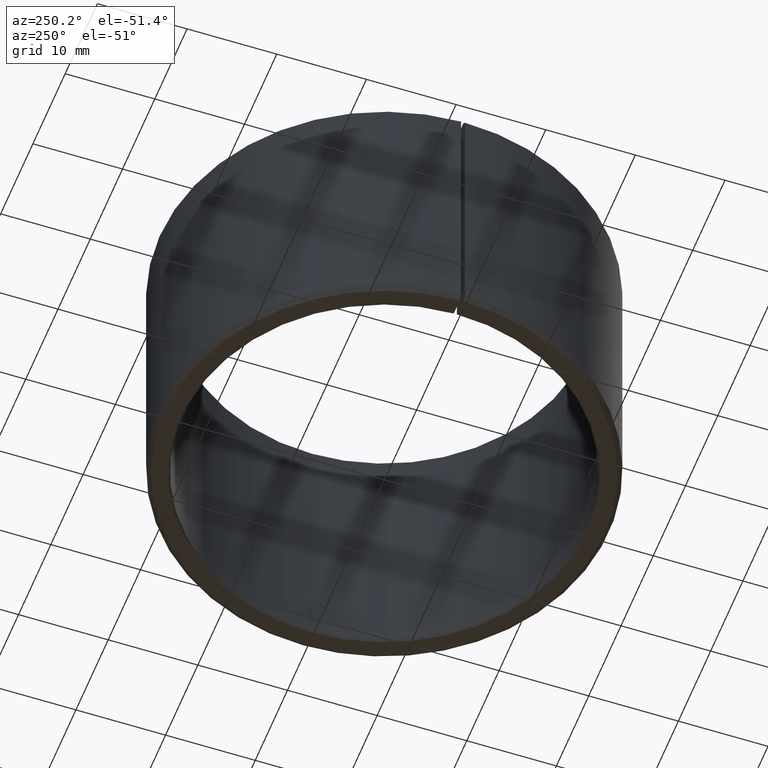
[diagram: clean part render]
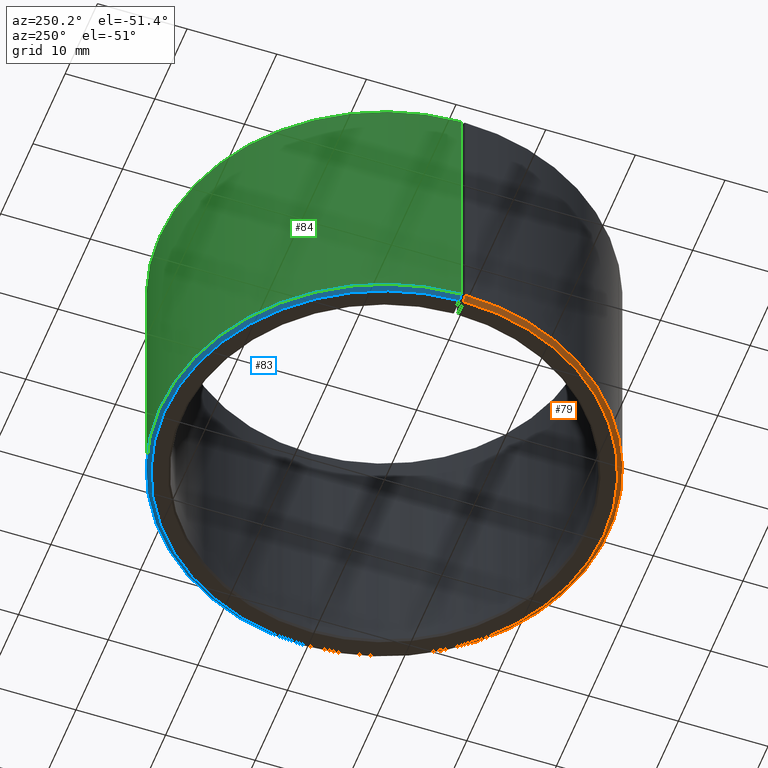
[diagram: same view with three faces highlighted in distinct colors, each labeled with its STEP entity id]
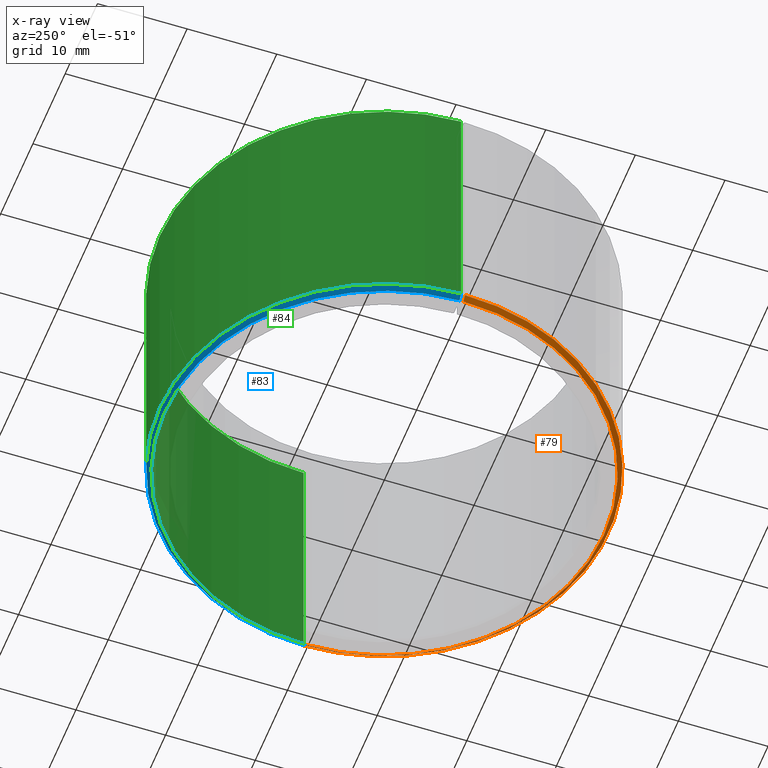
[diagram: x-ray of the same camera — body ghosted, the three highlighted faces saturated]
A machine part, auxiliary view with three faces highlighted in distinct colors.
The next image is the same camera in x-ray (body ghosted, the three faces saturated) — at least one of them is partly hidden behind the body in this view.
Their STEP definitions:

[orange] entity #79 — the highlighted conical surface has half-angle 45 deg.
#79=ADVANCED_FACE('',(#100),#101,.T.);
#100=FACE_OUTER_BOUND('',#132,.T.);
#101=CONICAL_SURFACE('',#133,24.75,0.785398163397451);
#132=EDGE_LOOP('',(#184,#185,#186,#187));
#133=AXIS2_PLACEMENT_3D('',#188,#189,#190);
#184=ORIENTED_EDGE('',*,*,#294,.F.);
#185=ORIENTED_EDGE('',*,*,#293,.F.);
#186=ORIENTED_EDGE('',*,*,#295,.F.);
#187=ORIENTED_EDGE('',*,*,#296,.T.);
#188=CARTESIAN_POINT('',(1.60070376892939E-015,-2.0063413613566E-015,0.250000000000001));
#189=DIRECTION('',(5.48707263966372E-016,-6.09939603923743E-016,1.0));
#190=DIRECTION('',(-1.0,-3.21624529935327E-016,5.48707263966372E-016));
#293=EDGE_CURVE('',#341,#339,#343,.T.);
#294=EDGE_CURVE('',#339,#344,#345,.T.);
#295=EDGE_CURVE('',#346,#341,#347,.T.);
#296=EDGE_CURVE('',#346,#344,#348,.T.);
#339=VERTEX_POINT('',#407);
#341=VERTEX_POINT('',#410);
#343=CIRCLE('',#413,25.0);
#344=VERTEX_POINT('',#414);
#345=LINE('',#415,#416);
#346=VERTEX_POINT('',#417);
#347=LINE('',#418,#419);
#348=CIRCLE('',#420,24.5);
#407=CARTESIAN_POINT('',(25.0,2.82016998817726E-015,0.499999999999987));
#410=CARTESIAN_POINT('',(-25.0,-9.49449387541526E-015,0.500000000000016));
#413=AXIS2_PLACEMENT_3D('',#487,#488,#489);
#414=CARTESIAN_POINT('',(24.5,3.02555986512884E-015,-1.1209004130118E-014));
#415=CARTESIAN_POINT('',(24.75,2.92286492665305E-015,0.249999999999988));
#416=VECTOR('',#490,1.0);
#417=CARTESIAN_POINT('',(-24.5,-9.5838233207983E-015,1.5954510228456E-014));
#418=CARTESIAN_POINT('',(-24.5,-9.5838233207983E-015,1.5954510228456E-014));
#419=VECTOR('',#491,9.99999999999999);
#420=AXIS2_PLACEMENT_3D('',#492,#493,#494);
#487=CARTESIAN_POINT('',(1.73788058492098E-015,-2.1435181773482E-015,0.5));
#488=DIRECTION('',(5.48707263966372E-016,-6.09939603923743E-016,1.0));
#489=DIRECTION('',(-1.0,-3.21624529935327E-016,5.48707263966372E-016));
#490=DIRECTION('',(-0.70710678118655,2.90465149559058E-016,-0.707106781186545));
#491=DIRECTION('',(-0.707106781186549,-6.15417513350146E-016,0.707106781186546));
#492=CARTESIAN_POINT('',(1.46352695293779E-015,-1.86916454536501E-015,2.24013171815854E-015));
#493=DIRECTION('',(5.48707263966372E-016,-6.09939603923743E-016,1.0));
#494=DIRECTION('',(-1.0,-3.21624529935327E-016,5.48707263966372E-016));

[blue] entity #83 — the highlighted conical surface has half-angle 45 deg.
#83=ADVANCED_FACE('',(#108),#109,.T.);
#108=FACE_OUTER_BOUND('',#140,.T.);
#109=CONICAL_SURFACE('',#141,24.75,0.785398163397451);
#140=EDGE_LOOP('',(#214,#215,#216,#217));
#141=AXIS2_PLACEMENT_3D('',#218,#219,#220);
#214=ORIENTED_EDGE('',*,*,#294,.T.);
#215=ORIENTED_EDGE('',*,*,#304,.T.);
#216=ORIENTED_EDGE('',*,*,#306,.T.);
#217=ORIENTED_EDGE('',*,*,#307,.F.);
#218=CARTESIAN_POINT('',(1.60070376892939E-015,-2.0063413613566E-015,0.250000000000001));
#219=DIRECTION('',(5.48707263966372E-016,-6.09939603923743E-016,1.0));
#220=DIRECTION('',(-1.0,-3.21624529935327E-016,5.48707263966372E-016));
#294=EDGE_CURVE('',#339,#344,#345,.T.);
#304=EDGE_CURVE('',#344,#359,#361,.T.);
#306=EDGE_CURVE('',#359,#363,#364,.T.);
#307=EDGE_CURVE('',#339,#363,#365,.T.);
#339=VERTEX_POINT('',#407);
#344=VERTEX_POINT('',#414);
#345=LINE('',#415,#416);
#359=VERTEX_POINT('',#434);
#361=CIRCLE('',#437,24.5);
#363=VERTEX_POINT('',#440);
#364=LINE('',#441,#442);
#365=CIRCLE('',#443,25.0);
#407=CARTESIAN_POINT('',(25.0,2.82016998817726E-015,0.499999999999987));
#414=CARTESIAN_POINT('',(24.5,3.02555986512884E-015,-1.1209004130118E-014));
#415=CARTESIAN_POINT('',(24.75,2.92286492665305E-015,0.249999999999988));
#416=VECTOR('',#490,1.0);
#434=CARTESIAN_POINT('',(-24.4962685313316,0.427583957713437,1.5929526734319E-014));
#437=AXIS2_PLACEMENT_3D('',#508,#509,#510);
#440=CARTESIAN_POINT('',(-24.9961923789098,0.436310160932078,0.500000000000014));
#441=CARTESIAN_POINT('',(-24.4962685313316,0.427583957713438,1.62197310003003E-014));
#442=VECTOR('',#512,9.99999999999999);
#443=AXIS2_PLACEMENT_3D('',#513,#514,#515);
#490=DIRECTION('',(-0.70710678118655,2.90465149559058E-016,-0.707106781186545));
#508=CARTESIAN_POINT('',(1.46352695293779E-015,-1.86916454536501E-015,2.24013171815854E-015));
#509=DIRECTION('',(5.48707263966372E-016,-6.09939603923743E-016,1.0));
#510=DIRECTION('',(-1.0,-3.21624529935327E-016,5.48707263966372E-016));
#512=DIRECTION('',(-0.706999085398826,0.0123407149398264,0.707106781186546));
#513=CARTESIAN_POINT('',(1.73788058492098E-015,-2.1435181773482E-015,0.5));
#514=DIRECTION('',(5.48707263966372E-016,-6.09939603923743E-016,1.0));
#515=DIRECTION('',(-1.0,-3.21624529935327E-016,5.48707263966372E-016));

[green] entity #84 — the highlighted cylindrical surface (partial cylindrical patch) has radius 25 mm, axis along (0, -0, 1).
#84=ADVANCED_FACE('',(#110),#111,.T.);
#110=FACE_OUTER_BOUND('',#142,.T.);
#111=CYLINDRICAL_SURFACE('',#143,25.0);
#142=EDGE_LOOP('',(#221,#222,#223,#224));
#143=AXIS2_PLACEMENT_3D('',#225,#226,#227);
#221=ORIENTED_EDGE('',*,*,#291,.T.);
#222=ORIENTED_EDGE('',*,*,#307,.T.);
#223=ORIENTED_EDGE('',*,*,#308,.T.);
#224=ORIENTED_EDGE('',*,*,#309,.F.);
#225=CARTESIAN_POINT('',(9.6941359124334E-015,-1.12099965294858E-014,15.0));
#226=DIRECTION('',(5.48707263966372E-016,-6.09939603923743E-016,1.0));
#227=DIRECTION('',(-1.0,-3.21624529935327E-016,5.48707263966372E-016));
#291=EDGE_CURVE('',#332,#339,#340,.T.);
#307=EDGE_CURVE('',#339,#363,#365,.T.);
#308=EDGE_CURVE('',#363,#366,#367,.T.);
#309=EDGE_CURVE('',#332,#366,#368,.T.);
#332=VERTEX_POINT('',#398);
#339=VERTEX_POINT('',#407);
#340=LINE('',#408,#409);
#363=VERTEX_POINT('',#440);
#365=CIRCLE('',#443,25.0);
#366=VERTEX_POINT('',#444);
#367=LINE('',#445,#446);
#368=CIRCLE('',#447,25.0);
#398=CARTESIAN_POINT('',(25.0,-1.50751245358653E-014,29.5));
#407=CARTESIAN_POINT('',(25.0,2.82016998817726E-015,0.499999999999987));
#408=CARTESIAN_POINT('',(25.0,-6.23100027897099E-015,15.0));
#409=VECTOR('',#485,1.0);
#440=CARTESIAN_POINT('',(-24.9961923789098,0.436310160932078,0.500000000000014));
#443=AXIS2_PLACEMENT_3D('',#513,#514,#515);
#444=CARTESIAN_POINT('',(-24.9961923789098,0.43631016093206,29.5));
#445=CARTESIAN_POINT('',(-24.9961923789098,0.43631016093208,0.500000000000017));
#446=VECTOR('',#516,10.0);
#447=AXIS2_PLACEMENT_3D('',#517,#518,#519);
#485=DIRECTION('',(-5.48707263966372E-016,6.09939603923743E-016,-1.0));
#513=CARTESIAN_POINT('',(1.73788058492098E-015,-2.1435181773482E-015,0.5));
#514=DIRECTION('',(5.48707263966372E-016,-6.09939603923743E-016,1.0));
#515=DIRECTION('',(-1.0,-3.21624529935327E-016,5.48707263966372E-016));
#516=DIRECTION('',(7.01550522622845E-016,-6.27944594031412E-016,1.0));
#517=CARTESIAN_POINT('',(1.76503912399458E-014,-2.02764748816234E-014,29.5));
#518=DIRECTION('',(5.48707263966372E-016,-6.09939603923743E-016,1.0));
#519=DIRECTION('',(-1.0,-3.21624529935327E-016,5.48707263966372E-016));